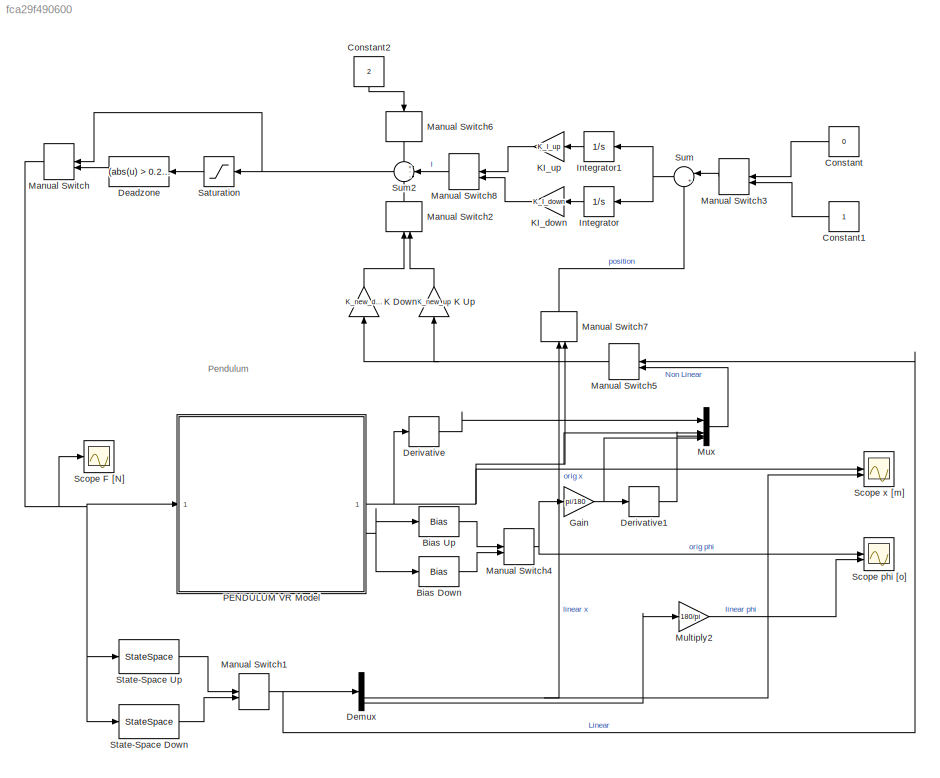
MODEL slx_fca29f490600
KIND model
CONFIG AbsTol = auto
CONFIG EnableMultiTasking = on
CONFIG FixedStep = auto
CONFIG InitFcn = g = 9.81; %gravitational constant\n\n%% S-function\n% showVR = 0;\n% CartBlocking = 0;\n% CartHard = 0;\n% phi0 = 0; %initial conditions
CONFIG MaxStep = 1e-2
CONFIG MinStep = auto
CONFIG RelTol = 1e-3
CONFIG SampleTimeConstraint = Unconstrained
CONFIG SolverName = ode45
CONFIG StartTime = 0.0
CONFIG StopTime = 20
BLOCK [Bias] Bias Down
  Bias = 90
  SaturateOnIntegerOverflow = off
BLOCK [Bias] Bias Up
  Bias = -90
  SaturateOnIntegerOverflow = off
BLOCK [Constant] Constant
  NameLocation = top
  Value = 0
BLOCK [Constant] Constant1
  NameLocation = top
BLOCK [Constant] Constant2
  NameLocation = left
  Value = 2
BLOCK [Fcn] Deadzone
  Expr = (abs(u) > 0.2) * u
  NameLocation = top
BLOCK [Demux] Demux
BLOCK [Derivative] Derivative
BLOCK [Derivative] Derivative1
BLOCK [Gain] Gain
  Gain = pi/180
BLOCK [Integrator] Integrator
  LowerSaturationLimit = -2
  NameLocation = top
  UpperSaturationLimit = 2
BLOCK [Integrator] Integrator1
  LowerSaturationLimit = -2
  NameLocation = top
  UpperSaturationLimit = 2
BLOCK [Gain] K Down
  Gain = K_new_down
  Multiplication = Matrix(K*u)
  NameLocation = right
BLOCK [Gain] K Up
  Gain = K_new_up
  Multiplication = Matrix(K*u)
  NameLocation = right
BLOCK [Gain] KI_down
  Gain = K_I_down
  NameLocation = top
BLOCK [Gain] KI_up
  Gain = K_I_up
  NameLocation = top
BLOCK [ManualSwitch] Manual Switch
  CurrentSetting = 0
  NameLocation = top
BLOCK [ManualSwitch] Manual Switch1
  CurrentSetting = 0
BLOCK [ManualSwitch] Manual Switch2
  NameLocation = right
BLOCK [ManualSwitch] Manual Switch3
  CurrentSetting = 0
  NameLocation = top
BLOCK [ManualSwitch] Manual Switch4
  CurrentSetting = 0
BLOCK [ManualSwitch] Manual Switch5
  CurrentSetting = 0
  NameLocation = top
BLOCK [ManualSwitch] Manual Switch6
  NameLocation = left
BLOCK [ManualSwitch] Manual Switch7
  CurrentSetting = 0
  NameLocation = right
BLOCK [ManualSwitch] Manual Switch8
  CurrentSetting = 0
  NameLocation = top
BLOCK [Gain] Multiply2
  Gain = 180/pi
BLOCK [Mux] Mux
  DisplayOption = bar
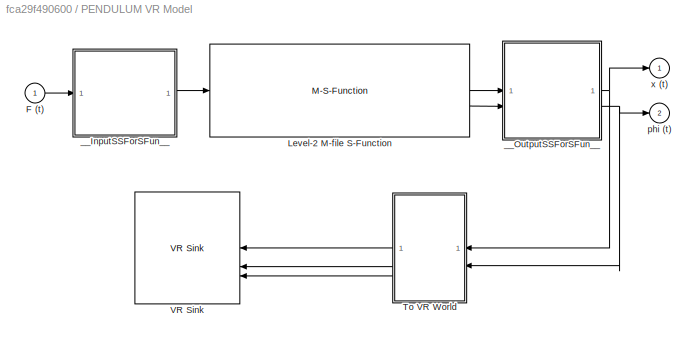
BLOCK [SubSystem] PENDULUM VR Model
BLOCK [Inport] PENDULUM VR Model/F (t)
BLOCK [M-S-Function] PENDULUM VR Model/Level-2 M-file S-Function
  FunctionName = pendulum_msfcn
  Parameters = y0, phi0, rail_bound, brake
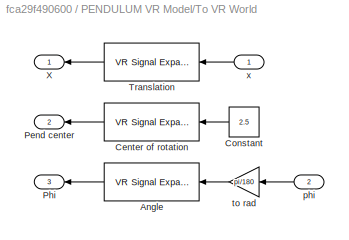
BLOCK [SubSystem] PENDULUM VR Model/To VR World
BLOCK [Reference] PENDULUM VR Model/To VR World/Angle  REF=vrlib/VR Signal Expander
  NameLocation = top
  SourceBlock = vrlib/VR Signal Expander
  SourceType = VR Signal Expander
BLOCK [Reference] PENDULUM VR Model/To VR World/Center of rotation  REF=vrlib/VR Signal Expander
  NameLocation = top
  SourceBlock = vrlib/VR Signal Expander
  SourceType = VR Signal Expander
BLOCK [Constant] PENDULUM VR Model/To VR World/Constant
  NameLocation = top
  Value = 2.5
BLOCK [Outport] PENDULUM VR Model/To VR World/Pend center
  Port = 2
BLOCK [Outport] PENDULUM VR Model/To VR World/Phi
  Port = 3
BLOCK [Reference] PENDULUM VR Model/To VR World/Translation  REF=vrlib/VR Signal Expander
  NameLocation = top
  SourceBlock = vrlib/VR Signal Expander
  SourceType = VR Signal Expander
BLOCK [Outport] PENDULUM VR Model/To VR World/X
BLOCK [Inport] PENDULUM VR Model/To VR World/phi
  Port = 2
BLOCK [Gain] PENDULUM VR Model/To VR World/to rad
  Gain = pi/180
BLOCK [Inport] PENDULUM VR Model/To VR World/x
BLOCK [Reference] PENDULUM VR Model/VR Sink  REF=vrlib/VR Sink
  InstantiateOnLoad = on
  SourceBlock = vrlib/VR Sink
  SourceType = Virtual Reality Sink
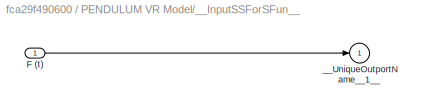
BLOCK [SubSystem] PENDULUM VR Model/__InputSSForSFun__
  PermitHierarchicalResolution = ExplicitOnly
BLOCK [Inport] PENDULUM VR Model/__InputSSForSFun__/F (t)
BLOCK [Outport] PENDULUM VR Model/__InputSSForSFun__/__UniqueOutportName__1__
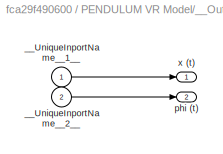
BLOCK [SubSystem] PENDULUM VR Model/__OutputSSForSFun__
  PermitHierarchicalResolution = ExplicitOnly
BLOCK [Inport] PENDULUM VR Model/__OutputSSForSFun__/__UniqueInportName__1__
BLOCK [Inport] PENDULUM VR Model/__OutputSSForSFun__/__UniqueInportName__2__
  Port = 2
BLOCK [Outport] PENDULUM VR Model/__OutputSSForSFun__/phi (t)
  OutDataTypeStr = double
  Port = 2
  PortDimensions = 1
  SampleTime = [-1 0]
  SignalType = real
BLOCK [Outport] PENDULUM VR Model/__OutputSSForSFun__/x (t)
  OutDataTypeStr = double
  PortDimensions = 1
  SampleTime = [-1 0]
  SignalType = real
BLOCK [Outport] PENDULUM VR Model/phi (t)
  OutDataTypeStr = double
  Port = 2
  PortDimensions = 1
  SampleTime = [-1 0]
  SignalType = real
BLOCK [Outport] PENDULUM VR Model/x (t)
  OutDataTypeStr = double
  PortDimensions = 1
  SampleTime = [-1 0]
  SignalType = real
BLOCK [Saturate] Saturation
  LowerLimit = -10
  NameLocation = top
  UpperLimit = 10
BLOCK [Scope] Scope F [N]
  Floating = off
  NumInputPorts = 1
  ScopeSpecificationString = Simulink.scopes.TimeScopeBlockCfg('CurrentConfiguration', extmgr.ConfigurationSet(extmgr.Configuration('Core','General UI',true),extmgr.Configuration('Core','Source UI',true),extmgr.Configuration('Sources','WiredSimulink',true,'DataLogging',true,'DataLoggingVariableName','tu','DataLoggingLimitDataPoints',true,'DataLoggingMaxPoints','5000000','DataLoggingDecimateData',true,'DataLoggingDecimation','...<+1831ch>
BLOCK [Scope] Scope phi [o]
  Floating = off
  NumInputPorts = 2
  ScopeSpecificationString = Simulink.scopes.TimeScopeBlockCfg('CurrentConfiguration', extmgr.ConfigurationSet(extmgr.Configuration('Core','General UI',true),extmgr.Configuration('Core','Source UI',true),extmgr.Configuration('Sources','WiredSimulink',true,'DataLogging',true,'DataLoggingVariableName','ty','DataLoggingLimitDataPoints',true,'DataLoggingMaxPoints','5000000','DataLoggingDecimateData',true,'DataLoggingDecimation','...<+1832ch>
BLOCK [Scope] Scope x [m]
  Floating = off
  NumInputPorts = 2
  ScopeSpecificationString = Simulink.scopes.TimeScopeBlockCfg('CurrentConfiguration', extmgr.ConfigurationSet(extmgr.Configuration('Core','General UI',true,'FigureColor',[0 0 0]),extmgr.Configuration('Core','Source UI',true),extmgr.Configuration('Sources','WiredSimulink',true,'DataLogging',true,'DataLoggingVariableName','tyx','DataLoggingDecimateData',true,'DataLoggingDecimation','1'),extmgr.Configuration('Visuals','Time Dom...<+2066ch>
BLOCK [StateSpace] State-Space Down
  A = A_down
  B = B_down
  C = C_four
  D = D_four
  InitialCondition = [0; 0; 0; 0]
BLOCK [StateSpace] State-Space Up
  A = A_up
  B = B_up
  C = C_four
  D = D_four
  InitialCondition = [0; 0; 0; 0]
BLOCK [Sum] Sum
  Inputs = |+-
  NameLocation = top
BLOCK [Sum] Sum2
  Inputs = +--
  NameLocation = top
ANNOTATION (root): Pendulum
LINE Bias Down:1 -> Manual Switch4:2
LINE Bias Up:1 -> Manual Switch4:1
LINE Constant1:1 -> Manual Switch3:2
LINE Constant2:1 -> Manual Switch6:1
LINE Constant:1 -> Manual Switch3:1
LINE Deadzone:1 -> Manual Switch:2
NET Demux:2 -> Manual Switch7:1, Scope x [m]:2
LINE Demux:4 -> Multiply2:1
LINE Derivative1:1 -> Mux:3
LINE Derivative:1 -> Mux:1
NET Gain:1 -> Derivative1:1, Mux:4
LINE Integrator1:1 -> KI_up:1
LINE Integrator:1 -> KI_down:1
LINE K Down:1 -> Manual Switch2:1
LINE K Up:1 -> Manual Switch2:2
LINE KI_down:1 -> Manual Switch8:2
LINE KI_up:1 -> Manual Switch8:1
NET Manual Switch1:1 -> Demux:1, Manual Switch5:1
LINE Manual Switch2:1 -> Sum2:3
LINE Manual Switch3:1 -> Sum:1
NET Manual Switch4:1 -> Gain:1, Scope phi [o]:1
NET Manual Switch5:1 -> K Down:1, K Up:1
LINE Manual Switch6:1 -> Sum2:1
LINE Manual Switch7:1 -> Sum:2
LINE Manual Switch8:1 -> Sum2:2
NET Manual Switch:1 -> PENDULUM VR Model:1, Scope F [N]:1, State-Space Down:1, State-Space Up:1
LINE Multiply2:1 -> Scope phi [o]:2
LINE Mux:1 -> Manual Switch5:2
LINE PENDULUM VR Model/F (t):1 -> PENDULUM VR Model/__InputSSForSFun__:1
LINE PENDULUM VR Model/Level-2 M-file S-Function:1 -> PENDULUM VR Model/__OutputSSForSFun__:1
LINE PENDULUM VR Model/Level-2 M-file S-Function:2 -> PENDULUM VR Model/__OutputSSForSFun__:2
LINE PENDULUM VR Model/To VR World/Angle:1 -> PENDULUM VR Model/To VR World/Phi:1
LINE PENDULUM VR Model/To VR World/Center of rotation:1 -> PENDULUM VR Model/To VR World/Pend center:1
LINE PENDULUM VR Model/To VR World/Constant:1 -> PENDULUM VR Model/To VR World/Center of rotation:1
LINE PENDULUM VR Model/To VR World/Translation:1 -> PENDULUM VR Model/To VR World/X:1
LINE PENDULUM VR Model/To VR World/phi:1 -> PENDULUM VR Model/To VR World/to rad:1
LINE PENDULUM VR Model/To VR World/to rad:1 -> PENDULUM VR Model/To VR World/Angle:1
LINE PENDULUM VR Model/To VR World/x:1 -> PENDULUM VR Model/To VR World/Translation:1
LINE PENDULUM VR Model/To VR World:1 -> PENDULUM VR Model/VR Sink:1
LINE PENDULUM VR Model/To VR World:2 -> PENDULUM VR Model/VR Sink:2
LINE PENDULUM VR Model/To VR World:3 -> PENDULUM VR Model/VR Sink:3
LINE PENDULUM VR Model/__InputSSForSFun__/F (t):1 -> PENDULUM VR Model/__InputSSForSFun__/__UniqueOutportName__1__:1
LINE PENDULUM VR Model/__InputSSForSFun__:1 -> PENDULUM VR Model/Level-2 M-file S-Function:1
LINE PENDULUM VR Model/__OutputSSForSFun__/__UniqueInportName__1__:1 -> PENDULUM VR Model/__OutputSSForSFun__/x (t):1
LINE PENDULUM VR Model/__OutputSSForSFun__/__UniqueInportName__2__:1 -> PENDULUM VR Model/__OutputSSForSFun__/phi (t):1
NET PENDULUM VR Model/__OutputSSForSFun__:1 -> PENDULUM VR Model/To VR World:1, PENDULUM VR Model/x (t):1
NET PENDULUM VR Model/__OutputSSForSFun__:2 -> PENDULUM VR Model/To VR World:2, PENDULUM VR Model/phi (t):1
NET PENDULUM VR Model:1 -> Derivative:1, Manual Switch7:2, Mux:2, Scope x [m]:1
NET PENDULUM VR Model:2 -> Bias Down:1, Bias Up:1
LINE Saturation:1 -> Deadzone:1
LINE State-Space Down:1 -> Manual Switch1:2
LINE State-Space Up:1 -> Manual Switch1:1
NET Sum2:1 -> Manual Switch:1, Saturation:1
NET Sum:1 -> Integrator1:1, Integrator:1
note: NET lines group one-source signal fan-out (src -> all destinations, sorted); 1:1 wires keep LINE
